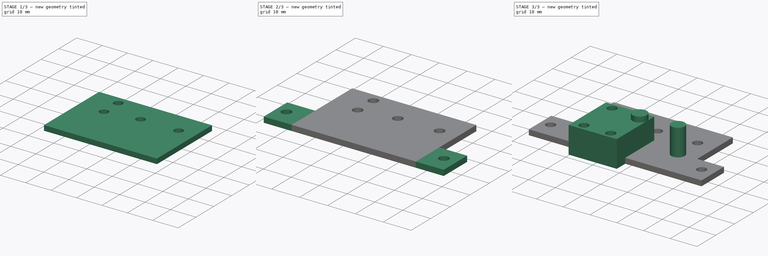
[diagram: build sequence overview — one tinted view per stage of 3, left to right]
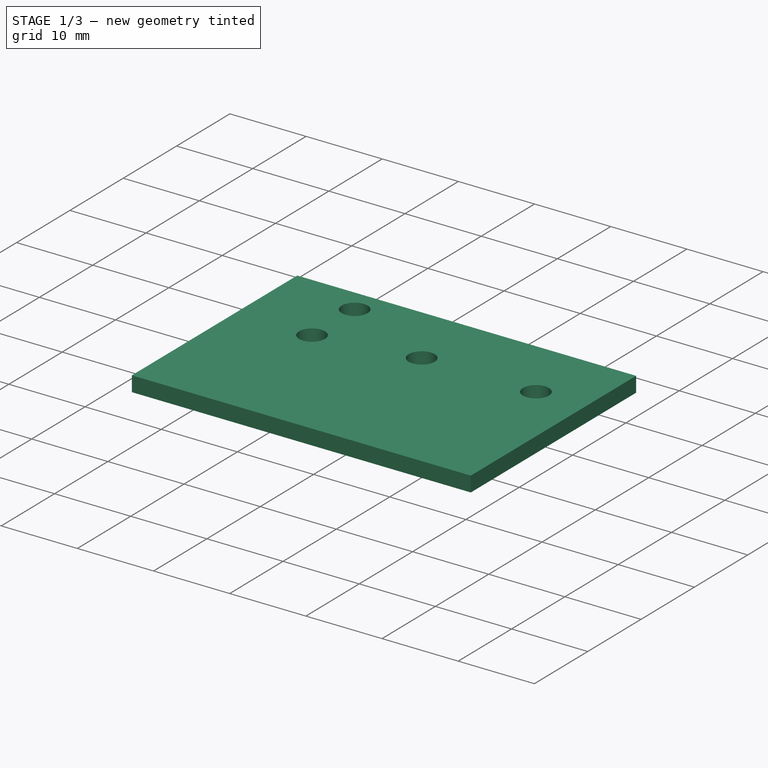
[diagram: stage 1 of 3 — iso view after this stage's code; geometry added in this stage tinted green]
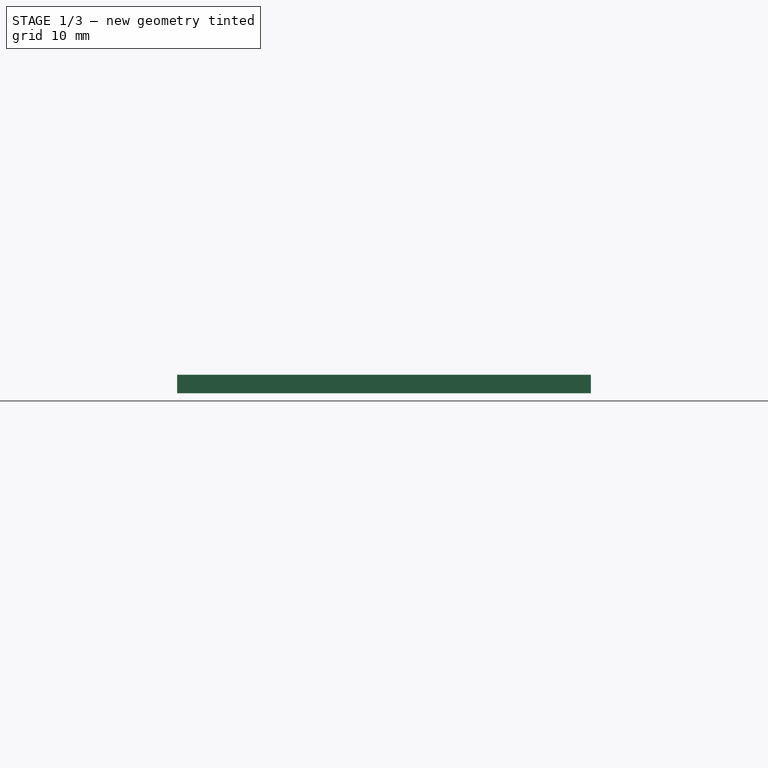
[diagram: stage 1 of 3 — front view after this stage's code; geometry added in this stage tinted green]
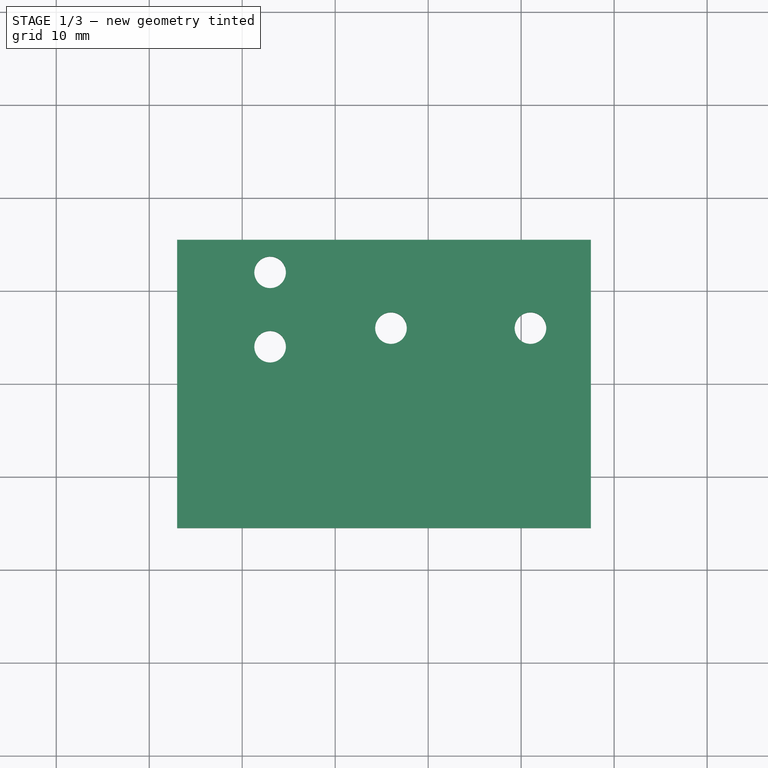
[diagram: stage 1 of 3 — top view after this stage's code; geometry added in this stage tinted green]
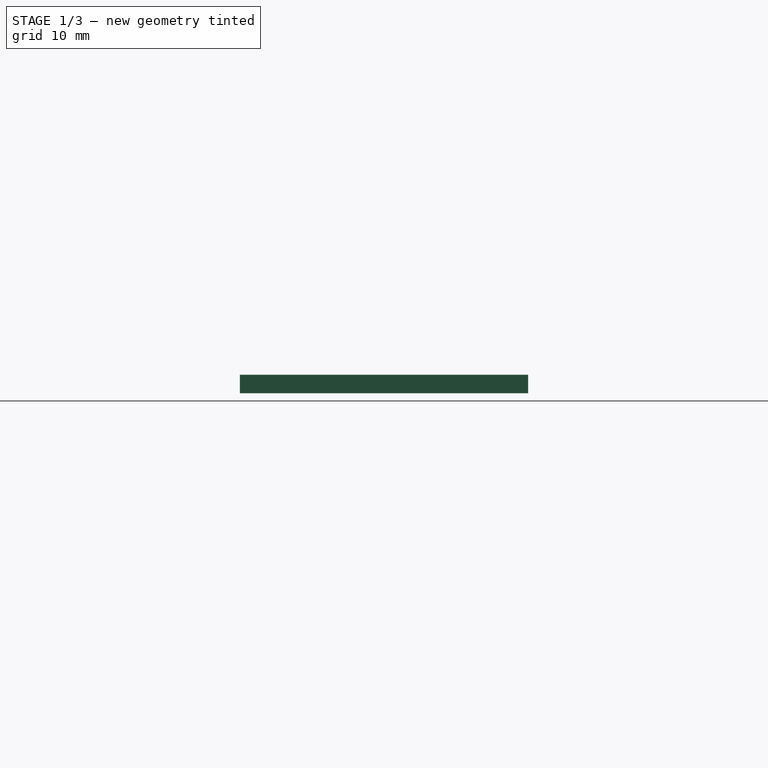
[diagram: stage 1 of 3 — right view after this stage's code; geometry added in this stage tinted green]
FCSTD DOCUMENT  (FreeCAD 0.18.4R)
Label: support
License: All rights reserved
LicenseURL: http://en.wikipedia.org/wiki/All_rights_reserved
objects: Sketcher::SketchObject×7, PartDesign::Pad×5, PartDesign::Body×3, PartDesign::Pocket×2
note: 24 computed .brp shape members not serialized (recipe doc carries the construction recipe); baked Part::Feature solids carry a one-line shape summary decoded from their .brp

FEATURE [Sketcher::SketchObject] Sketch
  MapMode = 5
  Support = -> [XY_Plane]
  sketch-geometry (4):
    g0: LineSegment StartX=-17 StartY=25.5 StartZ=0 EndX=27.5 EndY=25.5 EndZ=0
    g1: LineSegment StartX=27.5 StartY=25.5 StartZ=0 EndX=27.4991 EndY=-5.5 EndZ=0
    g2: LineSegment StartX=27.4991 StartY=-5.5 StartZ=0 EndX=-17.0014 EndY=-5.5 EndZ=0
    g3: LineSegment StartX=-17.0014 StartY=-5.5 StartZ=0 EndX=-17 EndY=25.5 EndZ=0
  constraints (10):
    c: Coincident(g0,g1)
    c: Coincident(g1,g2)
    c: Coincident(g2,g3)
    c: Coincident(g3,g0)
    c: DistanceX(g0,g0) = 44.5
    c: Distance(g0,g-2) = 27.5
    c: Parallel(g-1,g0)
    c: Distance(g3) = 31
    c: Distance(g1) = 31
    c: Distance(g-1,g0) = 25.5
FEATURE [PartDesign::Pad] Pad
  Length = 2
  Length2 = 100
  Profile = -> Sketch
  Type = 0
FEATURE [Sketcher::SketchObject] Sketch001
  MapMode = 5
  Placement = pos=(0,0,2) rot=(0,0,1;0rad)
  Support = -> [Pad]
  sketch-geometry (4):
    g0: Circle CenterX=-7 CenterY=22 CenterZ=0 NormalX=0 NormalY=0 NormalZ=1 AngleXU=0 Radius=1.7
    g1: Circle CenterX=-7 CenterY=14 CenterZ=0 NormalX=0 NormalY=0 NormalZ=1 AngleXU=0 Radius=1.7
    g2: Circle CenterX=6 CenterY=16 CenterZ=0 NormalX=0 NormalY=0 NormalZ=1 AngleXU=0 Radius=1.7
    g3: Circle CenterX=21 CenterY=16 CenterZ=0 NormalX=0 NormalY=0 NormalZ=1 AngleXU=0 Radius=1.7
  constraints (10):
    c: Radius(g1) = 1.7
    c: Radius(g0) = 1.7
    c: DistanceY(g1,g0) = 8
    c: Distance(g0,g-2) = 7
    c: Distance(g1,g-2) = 7
    c: Distance(g0,g-1) = 22
    c: Radius(g2) = 1.7
    c: DistanceX(g-2,g2) = 6
    c: Radius(g3) = 1.7
    c: Distance(g3,g2) = 15
FEATURE [PartDesign::Pocket] Pocket
  BaseFeature = -> Pad
  Length = 2
  Length2 = 100
  Profile = -> Sketch001
  Type = 0
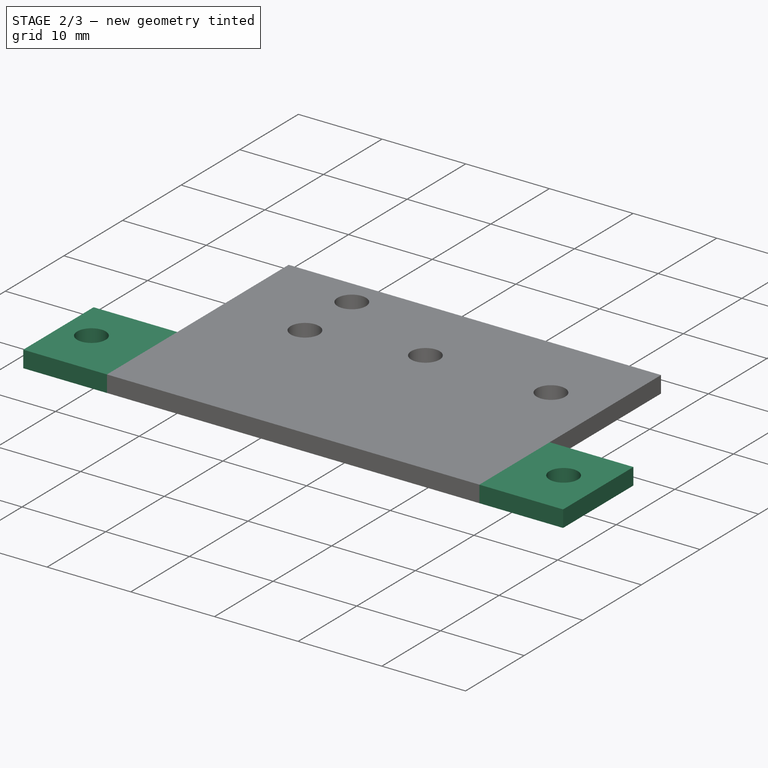
[diagram: stage 2 of 3 — iso view after this stage's code; geometry added in this stage tinted green]
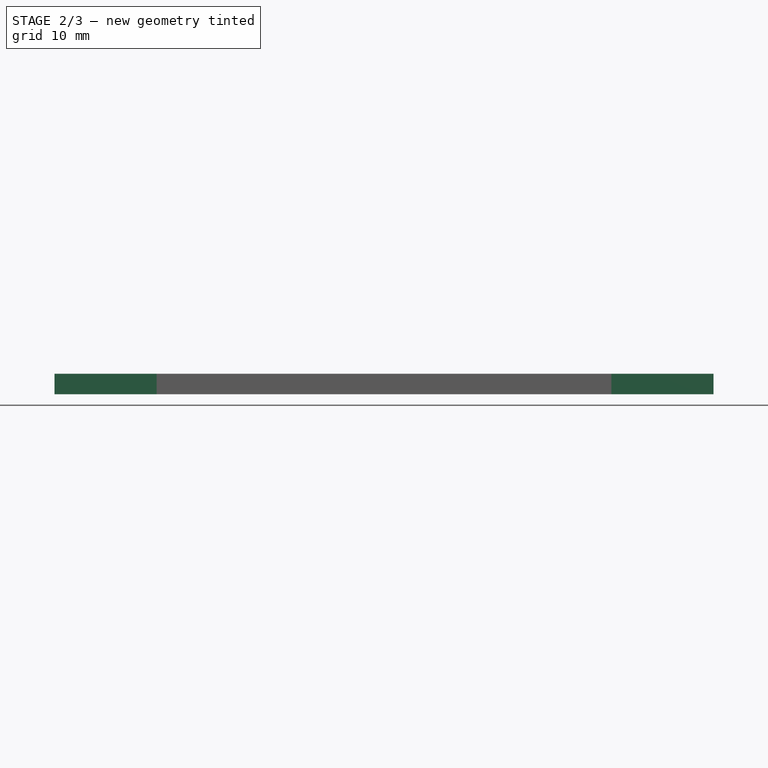
[diagram: stage 2 of 3 — front view after this stage's code; geometry added in this stage tinted green]
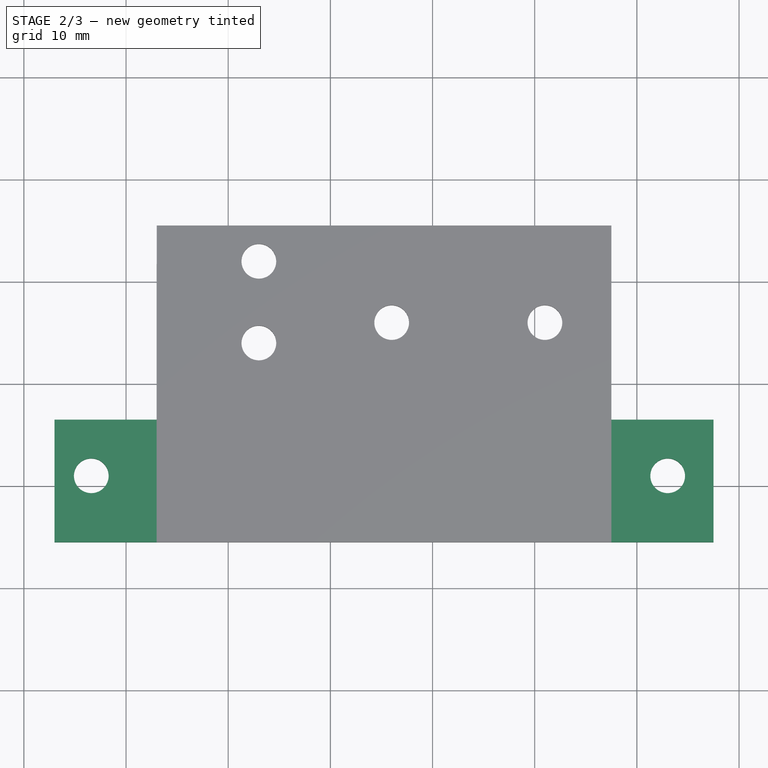
[diagram: stage 2 of 3 — top view after this stage's code; geometry added in this stage tinted green]
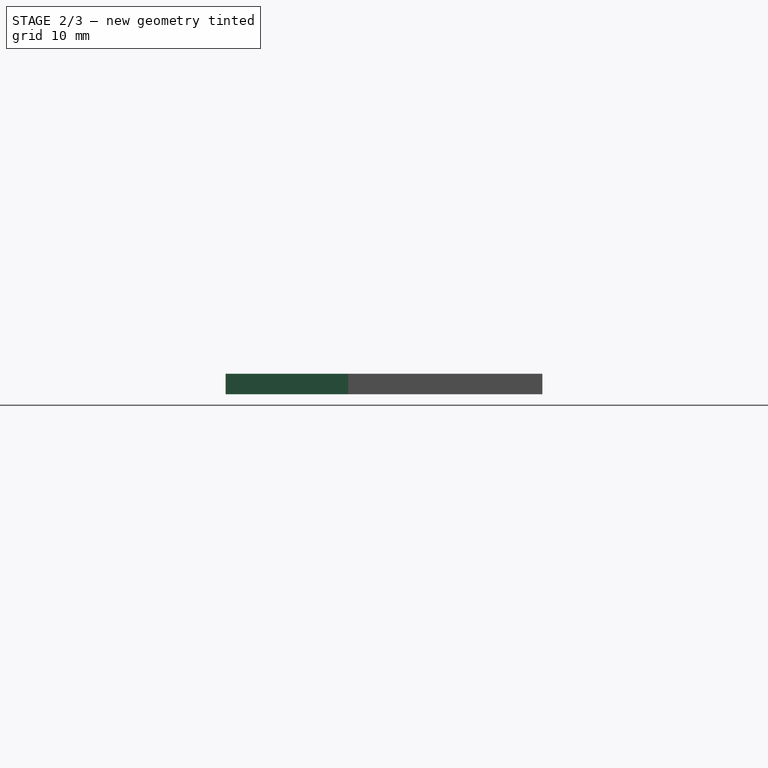
[diagram: stage 2 of 3 — right view after this stage's code; geometry added in this stage tinted green]
FEATURE [Sketcher::SketchObject] Sketch002
  ExternalGeometry = -> [Pocket]
  MapMode = 5
  Placement = pos=(-17.0011,0.000754424,0) rot=(-0.577333,0.577359,0.577359;4.18877rad)
  Support = -> [Pocket]
  sketch-geometry (4):
    g0: LineSegment StartX=-6.49925 StartY=4e-16 StartZ=0 EndX=5.50075 EndY=4e-16 EndZ=0
    g1: LineSegment StartX=5.50075 StartY=4e-16 StartZ=0 EndX=5.50075 EndY=2 EndZ=0
    g2: LineSegment StartX=5.50075 StartY=2 StartZ=0 EndX=-6.49925 EndY=2 EndZ=0
    g3: LineSegment StartX=-6.49925 StartY=2 StartZ=0 EndX=-6.49925 EndY=4e-16 EndZ=0
  constraints (11):
    c: Coincident(g0,g1)
    c: Coincident(g1,g2)
    c: Coincident(g2,g3)
    c: Coincident(g3,g0)
    c: Horizontal(g0)
    c: Horizontal(g2)
    c: Vertical(g1)
    c: Vertical(g3)
    c: Coincident(g0,g-3)
    c: DistanceY(g1,g1) = 2
    c: DistanceX(g0,g0) = 12
FEATURE [PartDesign::Pad] Pad001
  BaseFeature = -> Pocket
  Length = 10
  Length2 = 100
  Profile = -> Sketch002
  Type = 0
FEATURE [Sketcher::SketchObject] Sketch003
  ExternalGeometry = -> [Pad001]
  MapMode = 5
  Placement = pos=(27.4993,-0.000796073,0) rot=(0.577361,0.577345,0.577345;2.09438rad)
  Support = -> [Pad001]
  sketch-geometry (4):
    g0: LineSegment StartX=-5.4992 StartY=-9e-16 StartZ=0 EndX=6.5008 EndY=-9e-16 EndZ=0
    g1: LineSegment StartX=6.5008 StartY=-9e-16 StartZ=0 EndX=6.5008 EndY=2 EndZ=0
    g2: LineSegment StartX=6.5008 StartY=2 StartZ=0 EndX=-5.4992 EndY=2 EndZ=0
    g3: LineSegment StartX=-5.4992 StartY=2 StartZ=0 EndX=-5.4992 EndY=-9e-16 EndZ=0
  constraints (11):
    c: Coincident(g0,g1)
    c: Coincident(g1,g2)
    c: Coincident(g2,g3)
    c: Coincident(g3,g0)
    c: Horizontal(g0)
    c: Horizontal(g2)
    c: Vertical(g1)
    c: Vertical(g3)
    c: Coincident(g0,g-3)
    c: DistanceY(g1,g1) = 2
    c: DistanceX(g0,g0) = 12
FEATURE [PartDesign::Pad] Pad002
  BaseFeature = -> Pad001
  Length = 10
  Length2 = 100
  Profile = -> Sketch003
  Type = 0
FEATURE [Sketcher::SketchObject] Sketch004
  MapMode = 5
  Placement = pos=(2e-16,-2e-16,2) rot=(0,0,1;0rad)
  Support = -> [Pad002]
  sketch-geometry (2):
    g0: Circle CenterX=-23.4028 CenterY=1 CenterZ=0 NormalX=0 NormalY=0 NormalZ=1 AngleXU=0 Radius=1.7
    g1: Circle CenterX=33.0153 CenterY=1 CenterZ=0 NormalX=0 NormalY=0 NormalZ=1 AngleXU=0 Radius=1.7
  constraints (4):
    c: Radius(g0) = 1.7
    c: Radius(g1) = 1.7
    c: Distance(g1,g-1) = 1
    c: DistanceY(g-1,g0) = 1
FEATURE [PartDesign::Pocket] Pocket001
  BaseFeature = -> Pad002
  Length = 5
  Length2 = 100
  Profile = -> Sketch004
  Type = 0
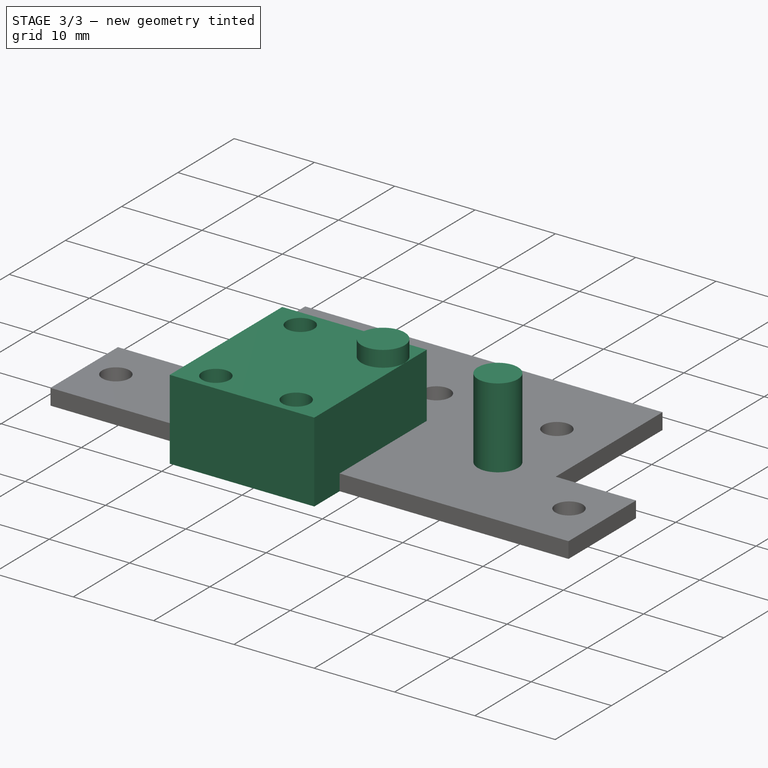
[diagram: stage 3 of 3 — iso view after this stage's code; geometry added in this stage tinted green]
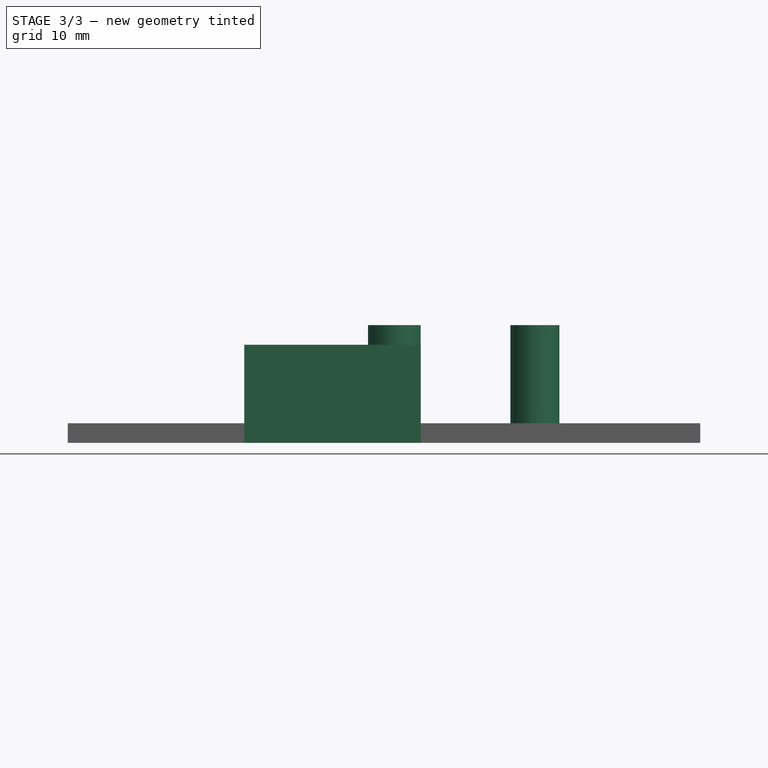
[diagram: stage 3 of 3 — front view after this stage's code; geometry added in this stage tinted green]
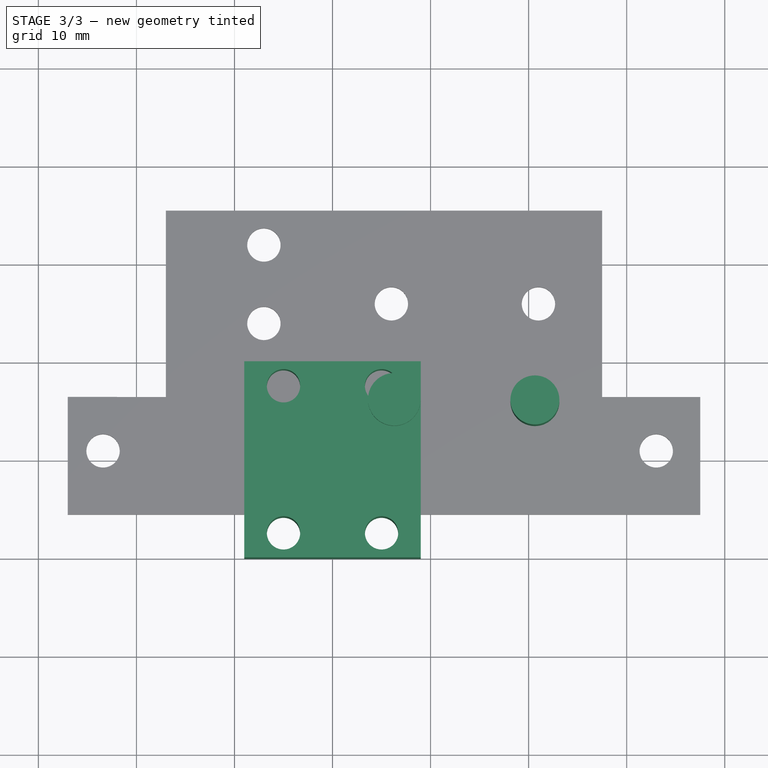
[diagram: stage 3 of 3 — top view after this stage's code; geometry added in this stage tinted green]
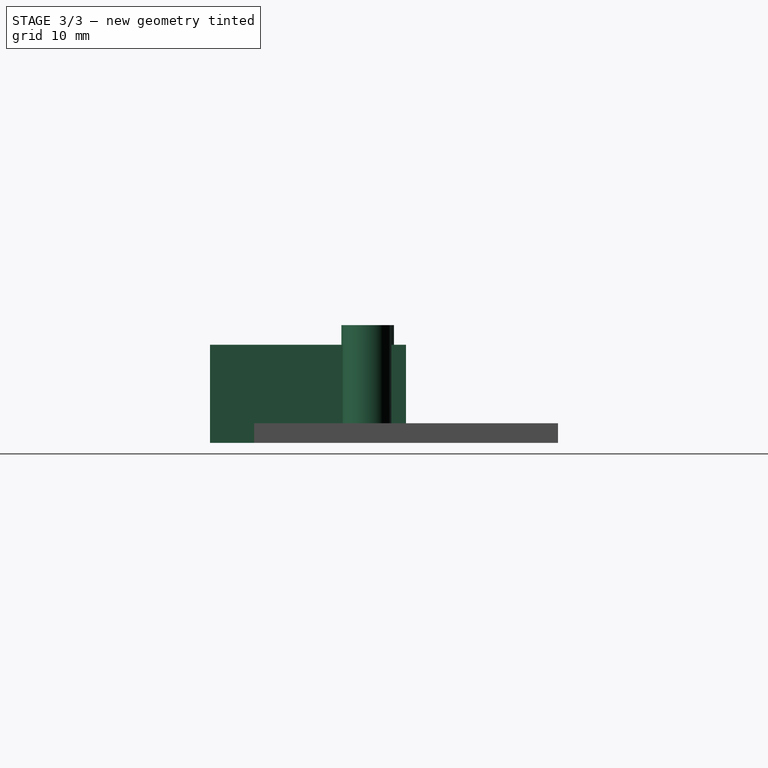
[diagram: stage 3 of 3 — right view after this stage's code; geometry added in this stage tinted green]
FEATURE [PartDesign::Body] Body001
  Origin = -> Origin001
FEATURE [Sketcher::SketchObject] Sketch005
  MapMode = 5
  Support = -> [XY_Plane002]
  sketch-geometry (8):
    g0: LineSegment StartX=-9 StartY=-10 StartZ=0 EndX=9 EndY=-10 EndZ=0
    g1: LineSegment StartX=9 StartY=-10 StartZ=0 EndX=9 EndY=10 EndZ=0
    g2: LineSegment StartX=9 StartY=10 StartZ=0 EndX=-9 EndY=10 EndZ=0
    g3: LineSegment StartX=-9 StartY=10 StartZ=0 EndX=-9 EndY=-10 EndZ=0
    g4: Circle CenterX=-5 CenterY=7.5 CenterZ=0 NormalX=0 NormalY=0 NormalZ=1 AngleXU=0 Radius=1.7
    g5: Circle CenterX=-5 CenterY=-7.5 CenterZ=0 NormalX=0 NormalY=0 NormalZ=1 AngleXU=0 Radius=1.7
    g6: Circle CenterX=5 CenterY=7.5 CenterZ=0 NormalX=0 NormalY=0 NormalZ=1 AngleXU=0 Radius=1.7
    g7: Circle CenterX=5 CenterY=-7.5 CenterZ=0 NormalX=0 NormalY=0 NormalZ=1 AngleXU=0 Radius=1.7
  constraints (19):
    c: Coincident(g0,g1)
    c: Coincident(g1,g2)
    c: Coincident(g2,g3)
    c: Coincident(g3,g0)
    c: Horizontal(g0)
    c: Vertical(g1)
    c: DistanceX(g2,g2) = 18
    c: DistanceY(g3,g3) = 20
    c: Symmetric(g2,g1,g-2)
    c: Symmetric(g2,g0,g-1)
    c: Radius(g6) = 1.7
    c: Radius(g4) = 1.7
    c: Radius(g5) = 1.7
    c: Radius(g7) = 1.7
    c: Distance(g6,g4) = 10
    c: Distance(g5,g4) = 15
    c: Symmetric(g4,g6,g-2)
    c: Symmetric(g5,g7,g-2)
    c: Symmetric(g5,g4,g-1)
FEATURE [PartDesign::Pad] Pad003
  Length = 10
  Length2 = 100
  Profile = -> Sketch005
  Type = 0
FEATURE [PartDesign::Body] Body002
  Group = -> [Sketch005,Pad003]
  Origin = -> Origin002
  Placement = pos=(13.5,11,2) rot=(0,0,1;1.5708rad)
  Tip = -> Pad003
FEATURE [Sketcher::SketchObject] Sketch006
  MapMode = 5
  Placement = pos=(0,0,2) rot=(0,0,1;0rad)
  Support = -> [Pocket001]
  sketch-geometry (2):
    g0: Circle CenterX=6.29909 CenterY=6.08601 CenterZ=0 NormalX=0 NormalY=0 NormalZ=1 AngleXU=0 Radius=2.68429
    g1: Circle CenterX=20.6383 CenterY=6.02379 CenterZ=0 NormalX=0 NormalY=0 NormalZ=1 AngleXU=0 Radius=2.49809
FEATURE [PartDesign::Pad] Pad004
  BaseFeature = -> Pocket001
  Length = 10
  Length2 = 100
  Profile = -> Sketch006
  Type = 0
FEATURE [PartDesign::Body] Body
  Group = -> [Sketch,Pad,Sketch001,Pocket,Sketch002,Pad001,Sketch003,Pad002,Sketch004,Pocket001,Sketch006,Pad004]
  Origin = -> Origin
  Tip = -> Pad004
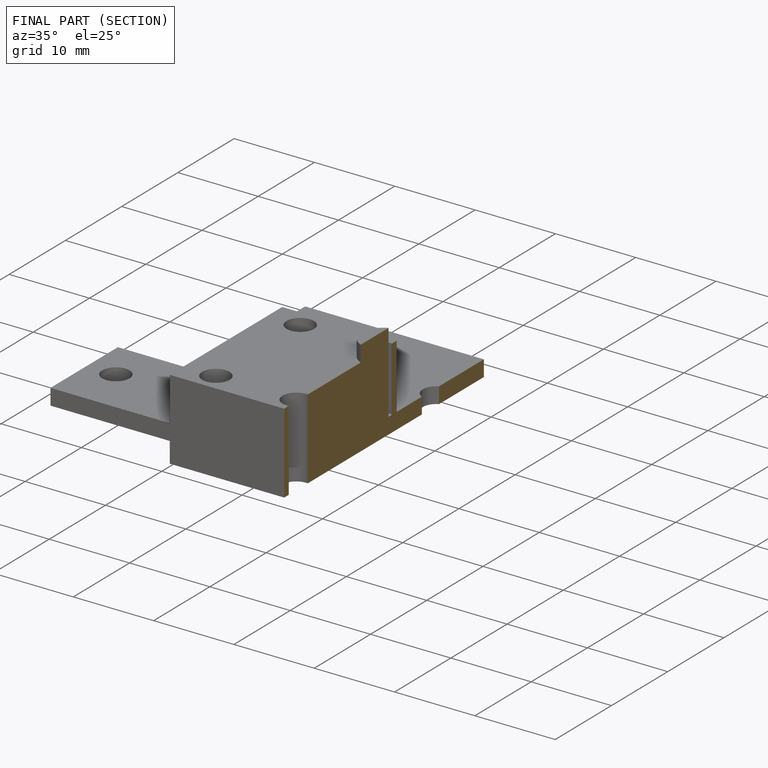
[diagram: finished part — half-section view (interior)]
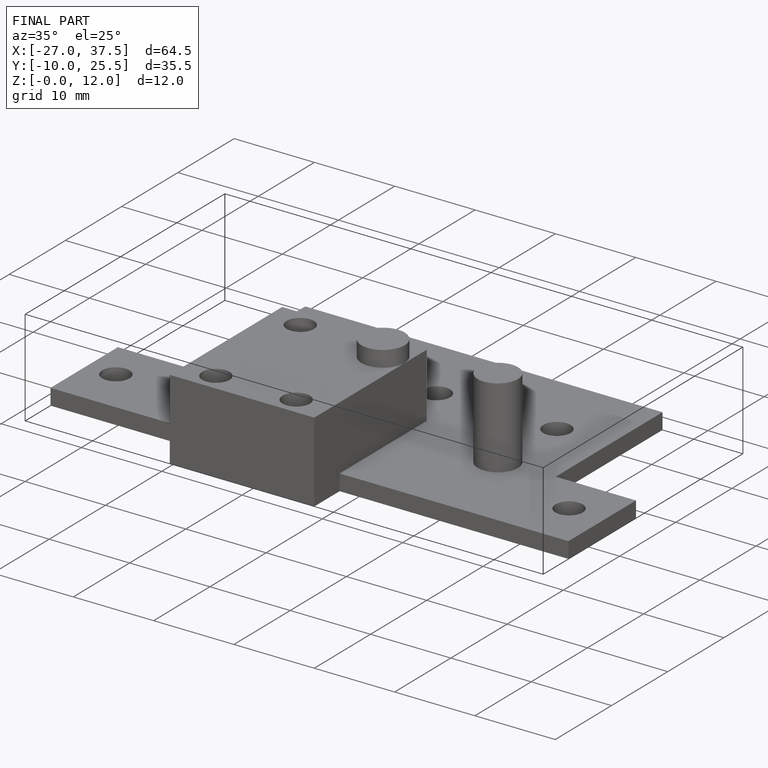
[diagram: finished part — iso view with bounding-box wireframe]
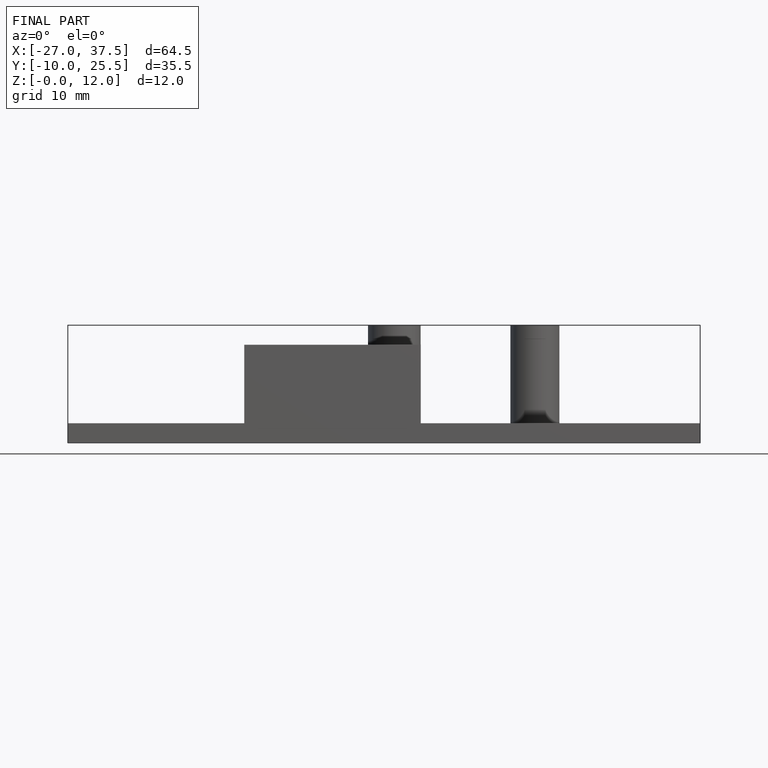
[diagram: finished part — front view with bounding-box wireframe]
